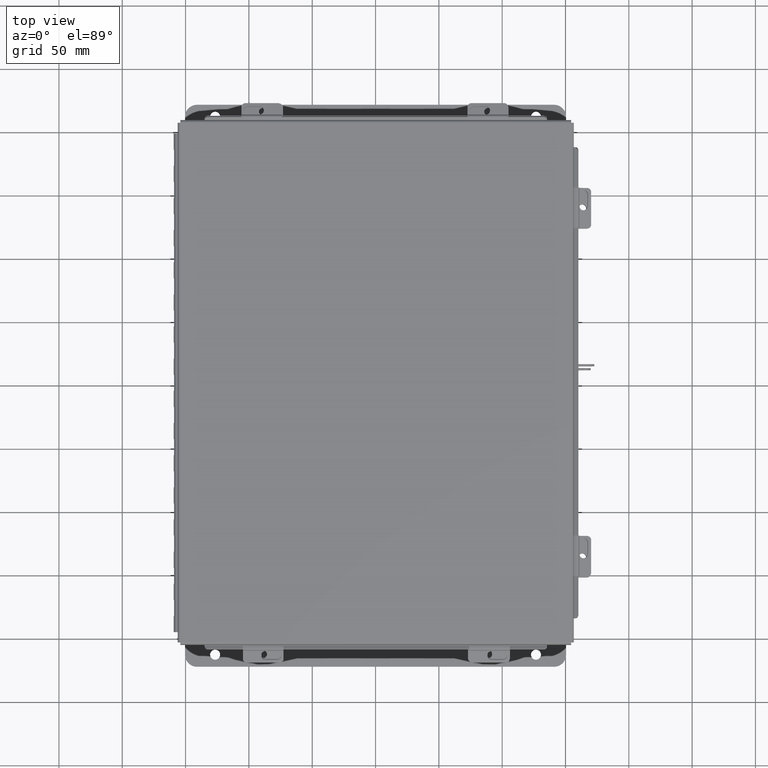
[diagram: clean part render]
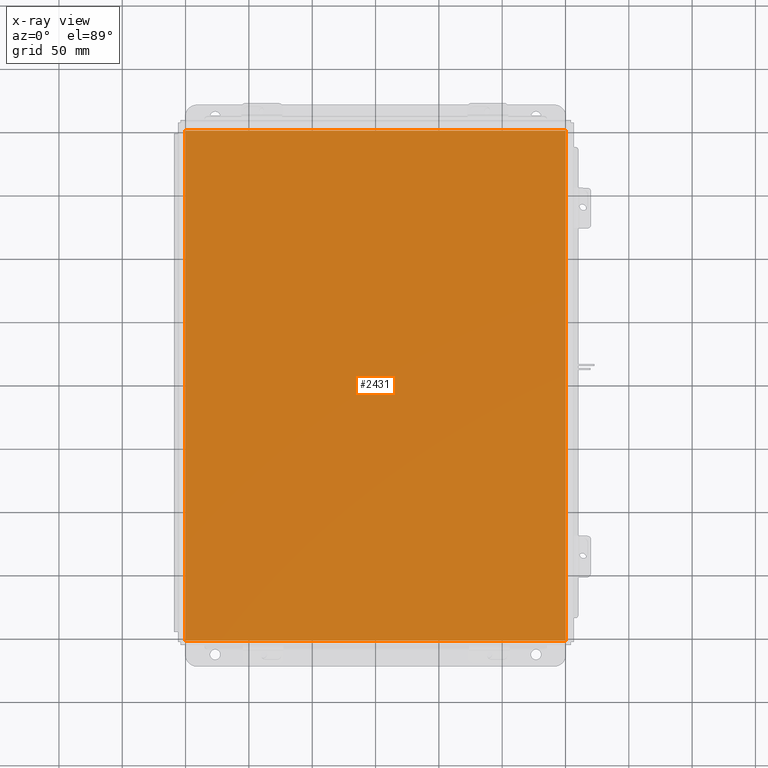
[diagram: x-ray — body ghosted, one internal face saturated and labeled with its STEP entity id]
A machine part, top view, then the same camera in x-ray: the body is ghosted and one INTERNAL B-rep face — a face not visible from any outside direction — is saturated and labeled: STEP entity #2431.
In plain terms, the highlighted planar face has unit normal (0, 0, -1).
Its self-contained STEP definition (entity closure, byte-faithful):
#2 = LINE ( 'NONE', #20084, #16049 ) ;
#561 = LINE ( 'NONE', #4394, #16611 ) ;
#1135 = VERTEX_POINT ( 'NONE', #7180 ) ;
#1385 = CARTESIAN_POINT ( 'NONE',  ( -6.000000000000000900, 7.925299999999998200, 0.0000000000000000000 ) ) ;
#1534 = EDGE_CURVE ( 'NONE', #1135, #4489, #2, .T. ) ;
#1937 = DIRECTION ( 'NONE',  ( -0.0000000000000000000, -1.000000000000000000, -0.0000000000000000000 ) ) ;
#2431 = ADVANCED_FACE ( 'NONE', ( #3590 ), #3446, .F. ) ;
#3446 = PLANE ( 'NONE',  #12783 ) ;
#3527 = CARTESIAN_POINT ( 'NONE',  ( 5.912300000000000100, -7.925300000000000000, 4.268512490100411300E-017 ) ) ;
#3590 = FACE_OUTER_BOUND ( 'NONE', #6920, .T. ) ;
#3998 = EDGE_CURVE ( 'NONE', #1135, #13420, #561, .T. ) ;
#4394 = CARTESIAN_POINT ( 'NONE',  ( -5.912300000000000100, -7.925300000000000900, 4.268512490100411300E-017 ) ) ;
#4489 = VERTEX_POINT ( 'NONE', #3527 ) ;
#5026 = VECTOR ( 'NONE', #1937, 39.37007874015748100 ) ;
#6555 = DIRECTION ( 'NONE',  ( -1.000000000000000000, 0.0000000000000000000, -0.0000000000000000000 ) ) ;
#6920 = EDGE_LOOP ( 'NONE', ( #12559, #9991, #11051, #9094 ) ) ;
#7180 = CARTESIAN_POINT ( 'NONE',  ( -5.912300000000000100, -7.925300000000000000, 4.268512490100411300E-017 ) ) ;
#8092 = CARTESIAN_POINT ( 'NONE',  ( 0.0000000000000000000, 0.0000000000000000000, 0.0000000000000000000 ) ) ;
#9094 = ORIENTED_EDGE ( 'NONE', *, *, #1534, .T. ) ;
#9106 = LINE ( 'NONE', #12816, #5026 ) ;
#9991 = ORIENTED_EDGE ( 'NONE', *, *, #12995, .T. ) ;
#11051 = ORIENTED_EDGE ( 'NONE', *, *, #3998, .F. ) ;
#12559 = ORIENTED_EDGE ( 'NONE', *, *, #18092, .F. ) ;
#12783 = AXIS2_PLACEMENT_3D ( 'NONE', #8092, #17537, #6555 ) ;
#12816 = CARTESIAN_POINT ( 'NONE',  ( 5.912300000000000100, 7.925300000000000000, 4.268512490100411300E-017 ) ) ;
#12995 = EDGE_CURVE ( 'NONE', #16283, #13420, #19497, .T. ) ;
#13420 = VERTEX_POINT ( 'NONE', #15236 ) ;
#13679 = DIRECTION ( 'NONE',  ( -0.0000000000000000000, 1.000000000000000000, -0.0000000000000000000 ) ) ;
#15236 = CARTESIAN_POINT ( 'NONE',  ( -5.912300000000000100, 7.925299999999998200, 4.268512490100411300E-017 ) ) ;
#16049 = VECTOR ( 'NONE', #16951, 39.37007874015748100 ) ;
#16283 = VERTEX_POINT ( 'NONE', #16550 ) ;
#16550 = CARTESIAN_POINT ( 'NONE',  ( 5.912300000000000100, 7.925299999999997300, 4.268512490100411300E-017 ) ) ;
#16611 = VECTOR ( 'NONE', #13679, 39.37007874015748100 ) ;
#16951 = DIRECTION ( 'NONE',  ( 1.000000000000000000, 0.0000000000000000000, 0.0000000000000000000 ) ) ;
#17537 = DIRECTION ( 'NONE',  ( 0.0000000000000000000, 0.0000000000000000000, -1.000000000000000000 ) ) ;
#18092 = EDGE_CURVE ( 'NONE', #16283, #4489, #9106, .T. ) ;
#18538 = VECTOR ( 'NONE', #20001, 39.37007874015748100 ) ;
#19497 = LINE ( 'NONE', #1385, #18538 ) ;
#20001 = DIRECTION ( 'NONE',  ( -1.000000000000000000, -0.0000000000000000000, -0.0000000000000000000 ) ) ;
#20084 = CARTESIAN_POINT ( 'NONE',  ( -6.000000000000000900, -7.925300000000000000, 0.0000000000000000000 ) ) ;